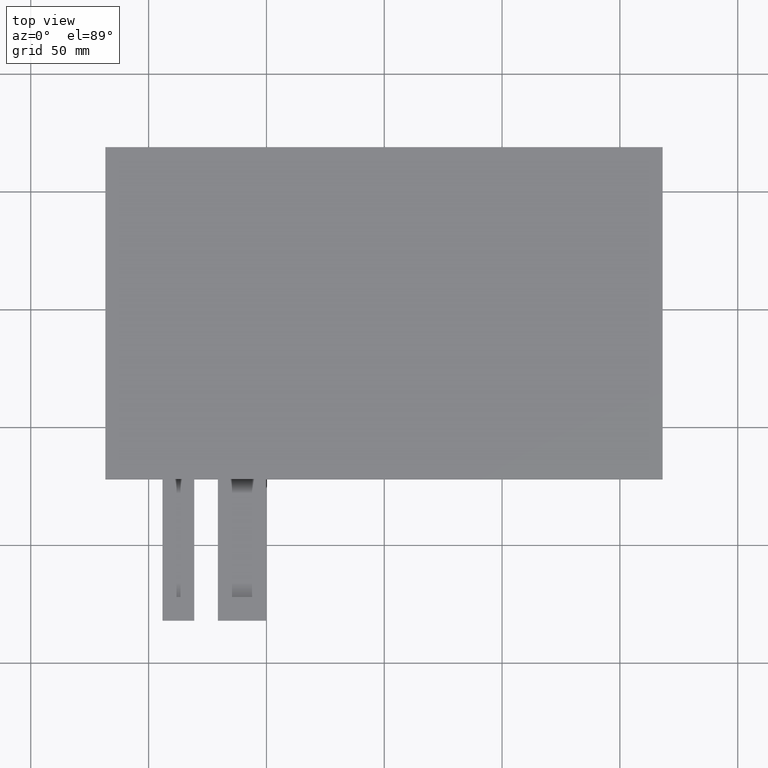
[diagram: clean part render]
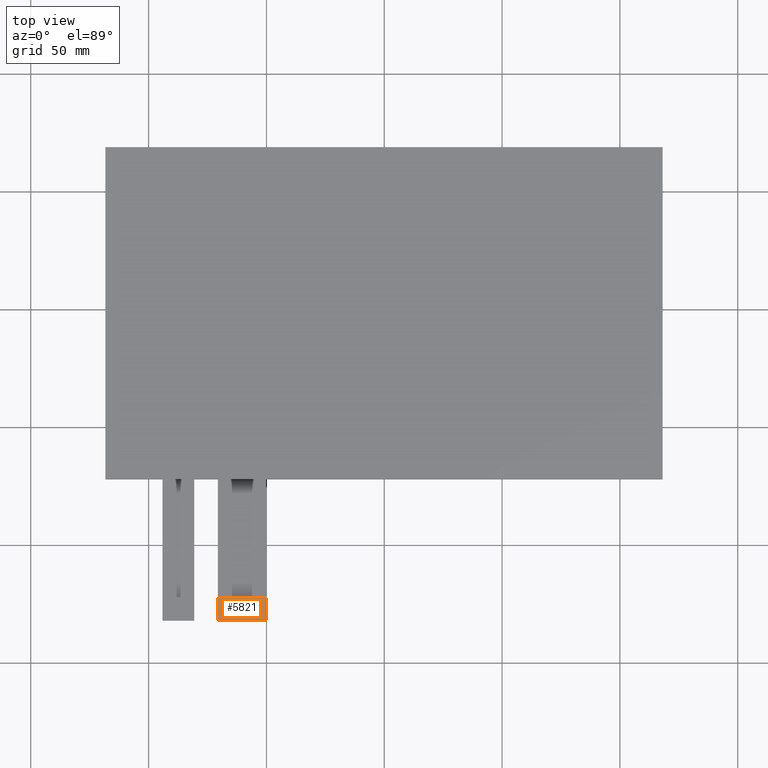
[diagram: same view with one face highlighted and labeled with its STEP entity id]
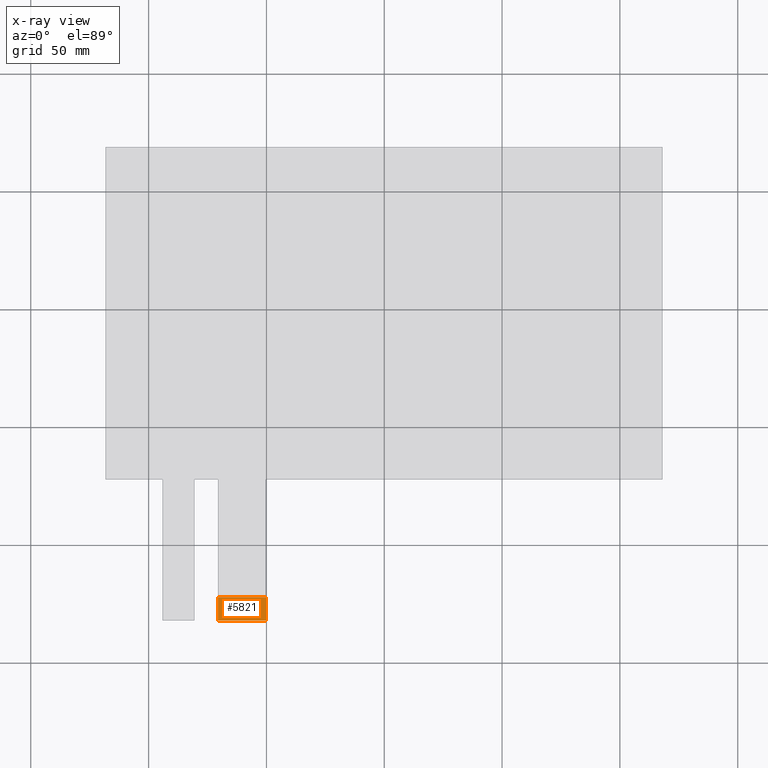
[diagram: x-ray of the same camera — body ghosted, the highlighted face saturated]
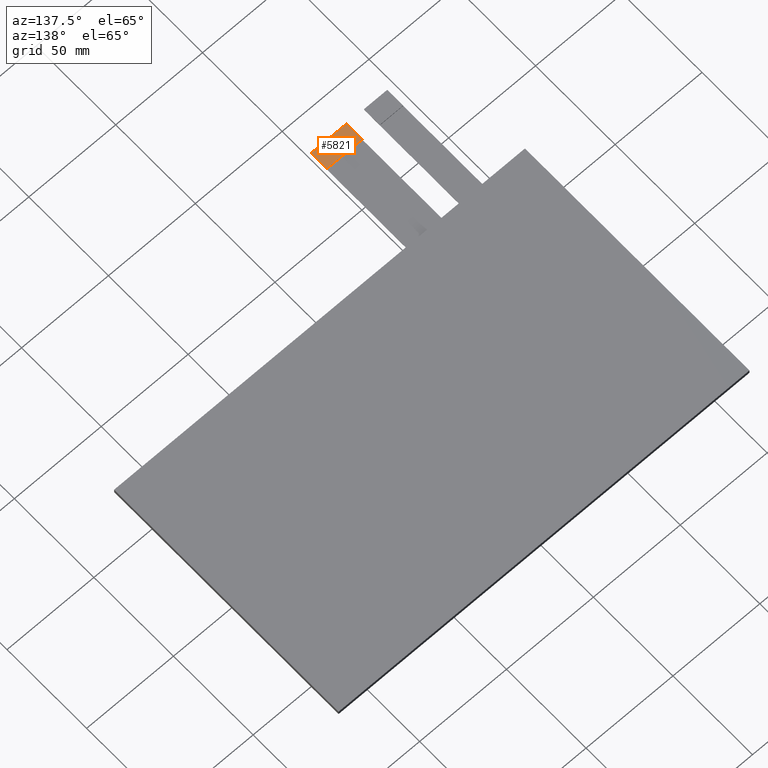
[diagram: same view with one face highlighted and labeled with its STEP entity id]
A machine part, top view. The second image highlights one B-rep face of the part: STEP entity #5821.
The next image is the same camera in x-ray: the body ghosted, the highlighted face saturated — about 0% of this face is hidden behind the body in this view.
A second angle (auxiliary view) of the same face is appended — the face is thin or edge-on in the first view.
In plain terms, the highlighted planar face has unit normal (0, 0, 1).
Its self-contained STEP definition (entity closure, byte-faithful):
#52=PLANE('',#6139);
#343=FACE_OUTER_BOUND('',#635,.T.);
#635=EDGE_LOOP('',(#4220,#4221,#4222,#4223,#4224,#4225));
#1046=LINE('',#8149,#1902);
#1047=LINE('',#8153,#1903);
#1048=LINE('',#8155,#1904);
#1049=LINE('',#8156,#1905);
#1902=VECTOR('',#6580,10.);
#1903=VECTOR('',#6583,10.);
#1904=VECTOR('',#6584,10.);
#1905=VECTOR('',#6585,10.);
#2639=CIRCLE('',#6138,0.2);
#2640=CIRCLE('',#6140,0.2);
#2765=VERTEX_POINT('',#8142);
#2766=VERTEX_POINT('',#8144);
#2767=VERTEX_POINT('',#8148);
#2768=VERTEX_POINT('',#8150);
#2769=VERTEX_POINT('',#8152);
#2770=VERTEX_POINT('',#8154);
#3346=EDGE_CURVE('',#2765,#2766,#2639,.T.);
#3348=EDGE_CURVE('',#2765,#2767,#1046,.T.);
#3349=EDGE_CURVE('',#2768,#2767,#2640,.T.);
#3350=EDGE_CURVE('',#2768,#2769,#1047,.T.);
#3351=EDGE_CURVE('',#2769,#2770,#1048,.T.);
#3352=EDGE_CURVE('',#2770,#2766,#1049,.T.);
#4220=ORIENTED_EDGE('',*,*,#3346,.F.);
#4221=ORIENTED_EDGE('',*,*,#3348,.T.);
#4222=ORIENTED_EDGE('',*,*,#3349,.F.);
#4223=ORIENTED_EDGE('',*,*,#3350,.T.);
#4224=ORIENTED_EDGE('',*,*,#3351,.T.);
#4225=ORIENTED_EDGE('',*,*,#3352,.T.);
#5821=ADVANCED_FACE('',(#343),#52,.T.);
#6138=AXIS2_PLACEMENT_3D('',#8145,#6575,#6576);
#6139=AXIS2_PLACEMENT_3D('',#8147,#6578,#6579);
#6140=AXIS2_PLACEMENT_3D('',#8151,#6581,#6582);
#6575=DIRECTION('center_axis',(0.,0.,-1.));
#6576=DIRECTION('ref_axis',(-0.707106781186548,-0.707106781186548,0.));
#6578=DIRECTION('center_axis',(0.,0.,1.));
#6579=DIRECTION('ref_axis',(1.,0.,0.));
#6580=DIRECTION('',(1.,0.,0.));
#6581=DIRECTION('center_axis',(0.,0.,-1.));
#6582=DIRECTION('ref_axis',(0.707106781186548,-0.707106781186548,0.));
#6583=DIRECTION('',(0.,1.,0.));
#6584=DIRECTION('',(-1.,0.,0.));
#6585=DIRECTION('',(0.,-1.,0.));
#8142=CARTESIAN_POINT('',(-70.41,-132.08,-0.8));
#8144=CARTESIAN_POINT('',(-70.61,-131.88,-0.8));
#8145=CARTESIAN_POINT('Origin',(-70.41,-131.88,-0.8));
#8147=CARTESIAN_POINT('Origin',(-60.36,-127.08,-0.8));
#8148=CARTESIAN_POINT('',(-50.31,-132.08,-0.8));
#8149=CARTESIAN_POINT('',(-70.61,-132.08,-0.8));
#8150=CARTESIAN_POINT('',(-50.11,-131.88,-0.8));
#8151=CARTESIAN_POINT('Origin',(-50.31,-131.88,-0.8));
#8152=CARTESIAN_POINT('',(-50.11,-122.08,-0.8));
#8153=CARTESIAN_POINT('',(-50.11,-132.08,-0.8));
#8154=CARTESIAN_POINT('',(-70.61,-122.08,-0.8));
#8155=CARTESIAN_POINT('',(-50.11,-122.08,-0.8));
#8156=CARTESIAN_POINT('',(-70.61,-122.08,-0.8));